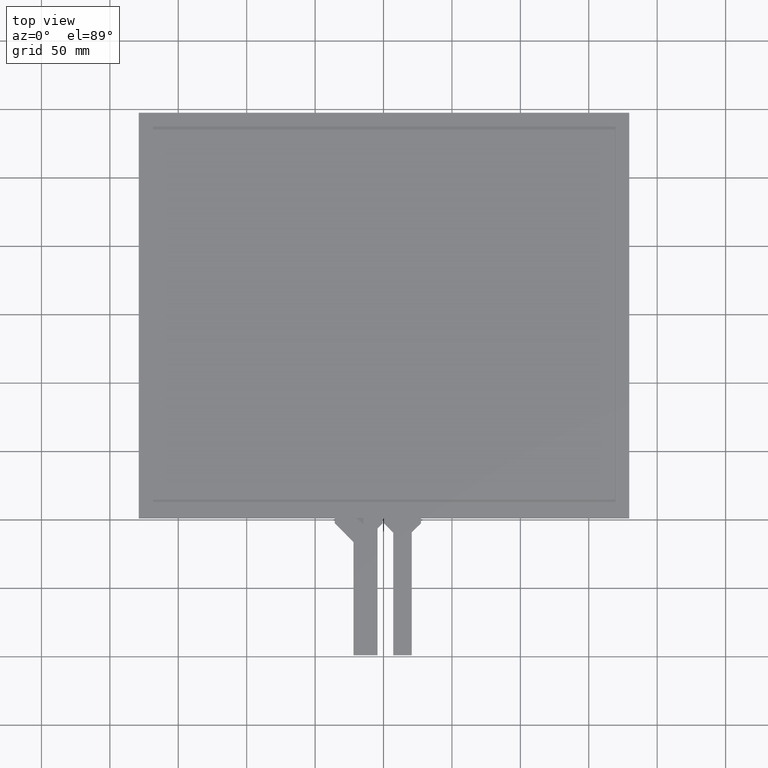
[diagram: clean part render]
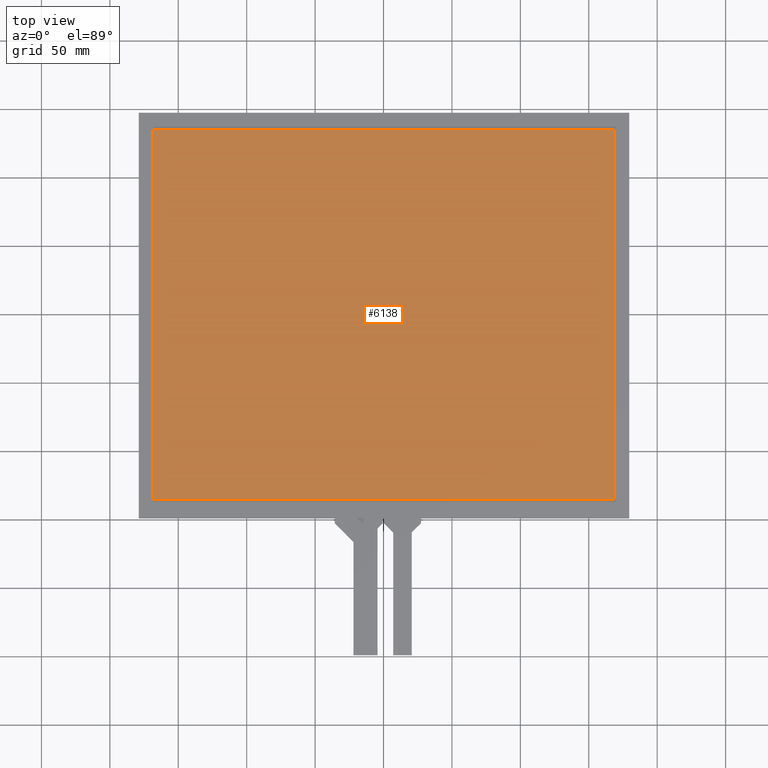
[diagram: same view with one face highlighted and labeled with its STEP entity id]
A machine part, top view. The second image highlights one B-rep face of the part: STEP entity #6138.
In plain terms, the highlighted planar face has unit normal (0, 0, 1).
Its self-contained STEP definition (entity closure, byte-faithful):
#368=PLANE('',#6476);
#662=FACE_OUTER_BOUND('',#960,.T.);
#960=EDGE_LOOP('',(#5826,#5827,#5828,#5829));
#1766=LINE('',#9618,#2606);
#1770=LINE('',#9626,#2610);
#1773=LINE('',#9632,#2613);
#1776=LINE('',#9637,#2616);
#2606=VECTOR('',#7890,10.);
#2610=VECTOR('',#7896,10.);
#2613=VECTOR('',#7901,10.);
#2616=VECTOR('',#7906,10.);
#3218=VERTEX_POINT('',#9616);
#3219=VERTEX_POINT('',#9617);
#3222=VERTEX_POINT('',#9625);
#3224=VERTEX_POINT('',#9631);
#4070=EDGE_CURVE('',#3218,#3219,#1766,.T.);
#4074=EDGE_CURVE('',#3222,#3218,#1770,.T.);
#4077=EDGE_CURVE('',#3224,#3222,#1773,.T.);
#4080=EDGE_CURVE('',#3219,#3224,#1776,.T.);
#5826=ORIENTED_EDGE('',*,*,#4070,.T.);
#5827=ORIENTED_EDGE('',*,*,#4080,.T.);
#5828=ORIENTED_EDGE('',*,*,#4077,.T.);
#5829=ORIENTED_EDGE('',*,*,#4074,.T.);
#6138=ADVANCED_FACE('',(#662),#368,.T.);
#6476=AXIS2_PLACEMENT_3D('',#9689,#7952,#7953);
#7890=DIRECTION('',(1.,0.,0.));
#7896=DIRECTION('',(0.,-1.,0.));
#7901=DIRECTION('',(-1.,0.,0.));
#7906=DIRECTION('',(0.,1.,0.));
#7952=DIRECTION('center_axis',(0.,0.,1.));
#7953=DIRECTION('ref_axis',(1.,0.,0.));
#9616=CARTESIAN_POINT('',(-168.96,-135.17,0.));
#9617=CARTESIAN_POINT('',(168.96,-135.17,0.));
#9618=CARTESIAN_POINT('',(-84.305,-135.17,0.));
#9625=CARTESIAN_POINT('',(-168.96,135.17,0.));
#9626=CARTESIAN_POINT('',(-168.96,67.21,0.));
#9631=CARTESIAN_POINT('',(168.96,135.17,0.));
#9632=CARTESIAN_POINT('',(84.655,135.17,0.));
#9637=CARTESIAN_POINT('',(168.96,-67.96,0.));
#9689=CARTESIAN_POINT('Origin',(0.349999999999984,-0.749999999999948,0.));